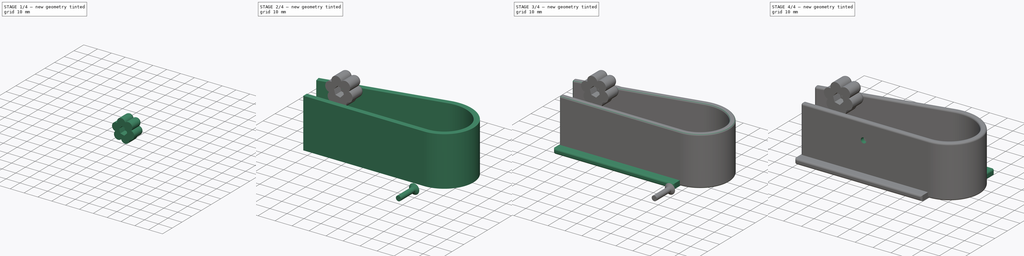
[diagram: build sequence overview — one tinted view per stage of 4, left to right]
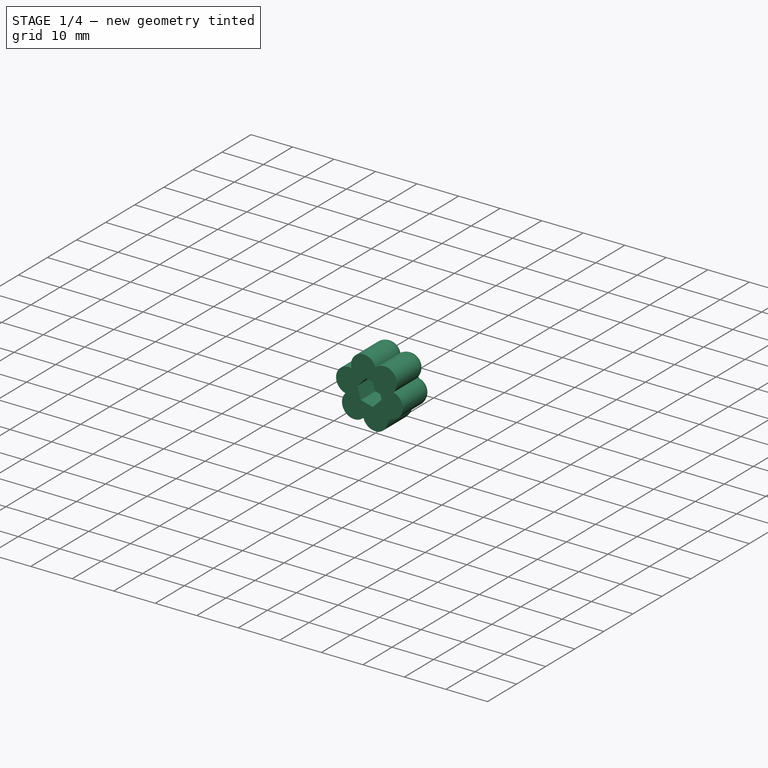
[diagram: stage 1 of 4 — iso view after this stage's code; geometry added in this stage tinted green]
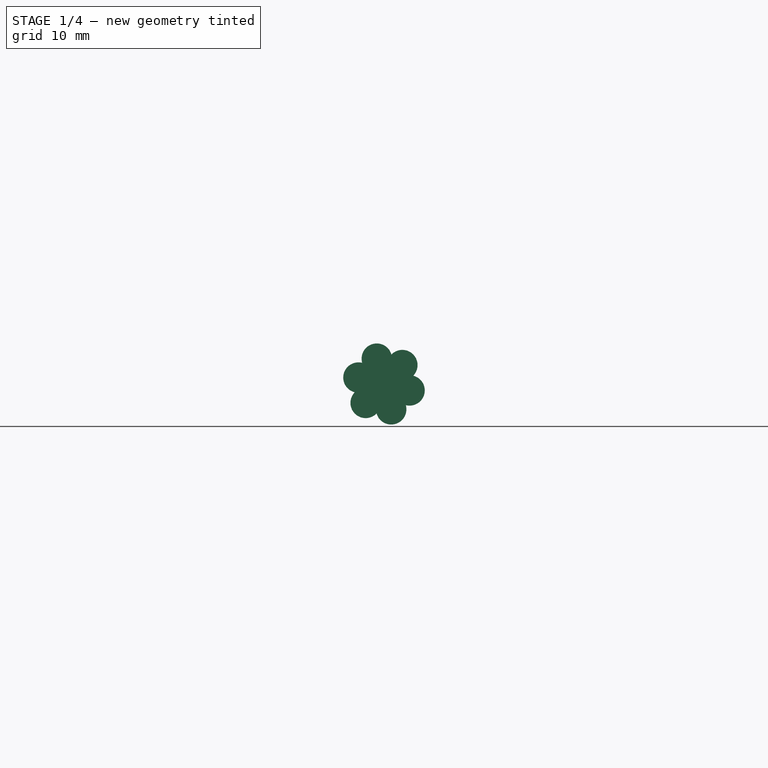
[diagram: stage 1 of 4 — front view after this stage's code; geometry added in this stage tinted green]
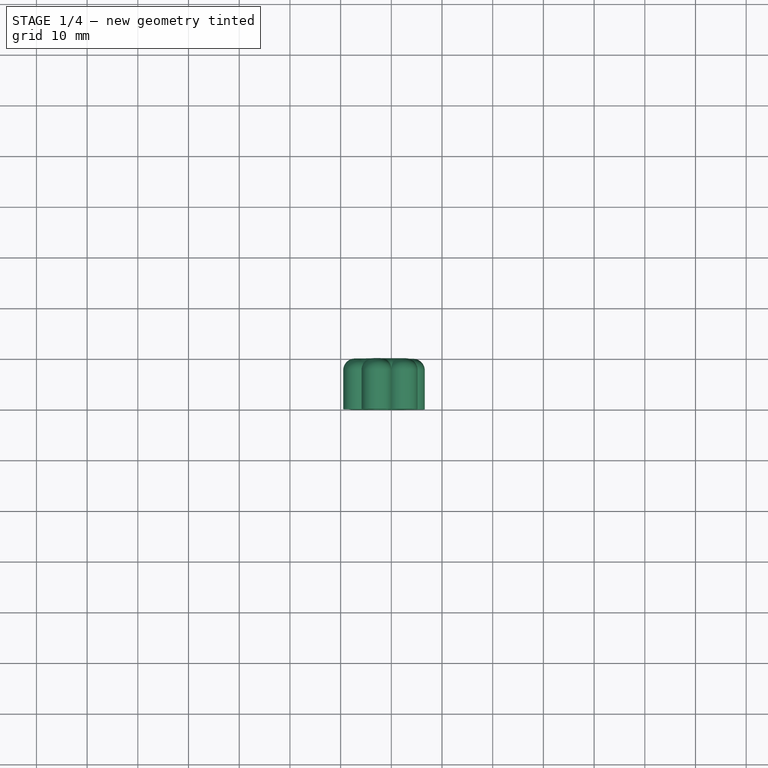
[diagram: stage 1 of 4 — top view after this stage's code; geometry added in this stage tinted green]
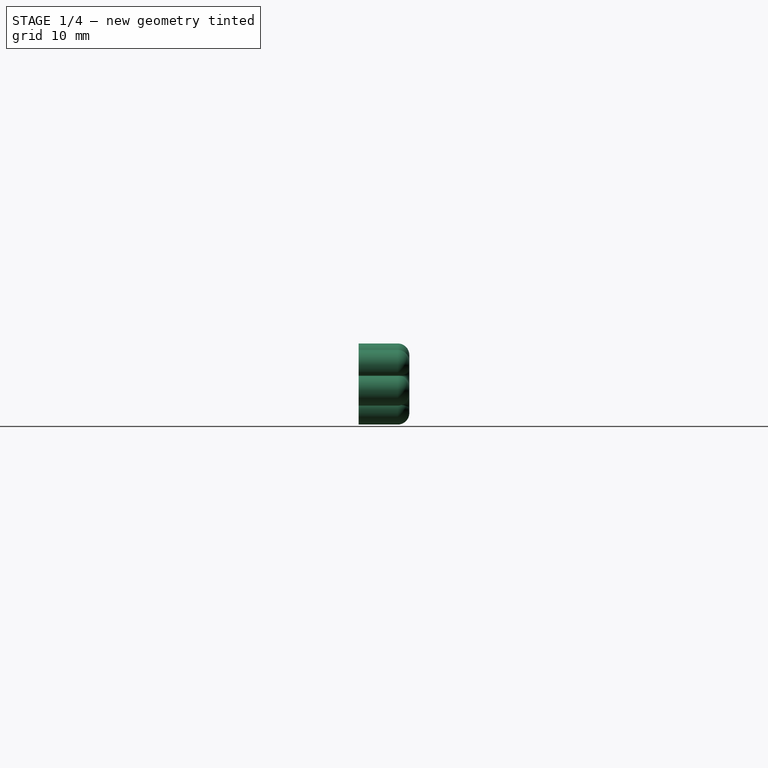
[diagram: stage 1 of 4 — right view after this stage's code; geometry added in this stage tinted green]
FCSTD DOCUMENT  (FreeCAD 0.18R16155 (Git))
Label: esshilfe
License: All rights reserved
LicenseURL: http://en.wikipedia.org/wiki/All_rights_reserved
objects: Sketcher::SketchObject×8, PartDesign::Body×4, PartDesign::Pad×3, PartDesign::Fillet×3, PartDesign::Pocket×2, PartDesign::AdditivePipe×1, PartDesign::Revolution×1, PartDesign::Boolean×1, PartDesign::ShapeBinder×1
note: 31 computed .brp shape members not serialized (recipe doc carries the construction recipe); baked Part::Feature solids carry a one-line shape summary decoded from their .brp

FEATURE [PartDesign::Body] Body005  label="klemm_platte"
  Group = -> [Sketch007,Pad002,Fillet]
  Origin = -> Origin005
  Placement = pos=(-17,-16,4.25) rot=(1,0,0;1.5708rad)
  Tip = -> Fillet
FEATURE [Sketcher::SketchObject] Sketch010
  MapMode = 5
  Placement = pos=(0,0,0) rot=(1,0,0;1.5708rad)
  Support = -> [XZ_Plane007]
  sketch-geometry (7):
    g0: Circle [constr] CenterX=-51.4417 CenterY=34.0103 CenterZ=0 NormalX=0 NormalY=0 NormalZ=1 AngleXU=0 Radius=6
    g1: ArcOfCircle CenterX=-46.403 CenterY=32.7406 CenterZ=0 NormalX=0 NormalY=0 NormalZ=1 AngleXU=0 Radius=3 StartAngle=4.46552 EndAngle=7.60712
    g2: ArcOfCircle CenterX=-47.8227 CenterY=37.739 CenterZ=0 NormalX=0 NormalY=0 NormalZ=1 AngleXU=0 Radius=3 StartAngle=5.51272 EndAngle=8.65432
    g3: ArcOfCircle CenterX=-52.8613 CenterY=39.0088 CenterZ=0 NormalX=0 NormalY=0 NormalZ=1 AngleXU=0 Radius=3 StartAngle=0.276737 EndAngle=3.41833
    g4: ArcOfCircle CenterX=-56.4803 CenterY=35.2801 CenterZ=0 NormalX=0 NormalY=0 NormalZ=1 AngleXU=0 Radius=3 StartAngle=1.32393 EndAngle=4.46553
    g5: ArcOfCircle CenterX=-55.0606 CenterY=30.2816 CenterZ=0 NormalX=0 NormalY=0 NormalZ=1 AngleXU=0 Radius=3 StartAngle=2.37113 EndAngle=5.51272
    g6: ArcOfCircle CenterX=-50.022 CenterY=29.0119 CenterZ=0 NormalX=0 NormalY=0 NormalZ=1 AngleXU=0 Radius=3 StartAngle=3.41833 EndAngle=6.55992
  constraints (21):
    c: PointOnObject(g1,g0)
    c: PointOnObject(g1,g0)
    c: Coincident(g2,g1)
    c: PointOnObject(g2,g0)
    c: Coincident(g3,g2)
    c: PointOnObject(g3,g0)
    c: PointOnObject(g4,g0)
    c: Coincident(g5,g4)
    c: PointOnObject(g5,g0)
    c: Coincident(g6,g5)
    c: Coincident(g6,g1)
    c: Radius(g2) = 3
    c: Equal(g2, g3-g6) x4
    c: Equal(g2,g1)
    c: Coincident(g3,g4)
    c: Distance(g2,g1) = 6
    c: Distance(g3,g2) = 6
    c: Distance(g3,g4) = 6
    c: Distance(g4,g5) = 6
    c: Distance(g5,g1) = 6
    c: Distance(g1,g1) = 6
FEATURE [PartDesign::Pad] Pad004
  Length = 10
  Length2 = 100
  Placement = pos=(0,0,0) rot=(1,0,0;1.5708rad)
  Profile = -> Sketch010
  Type = 0
FEATURE [Sketcher::SketchObject] Sketch011
  ExternalGeometry = -> [Pad004]
  MapMode = 5
  Placement = pos=(0,-10,-2.2e-15) rot=(1,0,0;1.5708rad)
  Support = -> [Pad004]
  sketch-geometry (11):
    g0: LineSegment StartX=-48.5326 StartY=33.2772 StartZ=0 EndX=-49.3523 EndY=36.1631 EndZ=0
    g1: LineSegment StartX=-49.3523 StartY=36.1631 StartZ=0 EndX=-52.2613 EndY=36.8962 EndZ=0
    g2: LineSegment StartX=-52.2613 StartY=36.8962 StartZ=0 EndX=-54.3507 EndY=34.7434 EndZ=0
    g3: LineSegment StartX=-54.3507 StartY=34.7434 StartZ=0 EndX=-53.5311 EndY=31.8576 EndZ=0
    g4: LineSegment StartX=-53.5311 StartY=31.8576 StartZ=0 EndX=-50.622 EndY=31.1245 EndZ=0
    g5: LineSegment StartX=-50.622 StartY=31.1245 StartZ=0 EndX=-48.5326 EndY=33.2772 EndZ=0
    g6: Circle [constr] CenterX=-51.4417 CenterY=34.0103 CenterZ=0 NormalX=0 NormalY=0 NormalZ=1 AngleXU=0 Radius=3
    g7: LineSegment [constr] StartX=-49.9755 StartY=39.8284 StartZ=0 EndX=-49.3523 EndY=36.1631 EndZ=0
    g8: LineSegment [constr] StartX=-48.5326 StartY=33.2772 StartZ=0 EndX=-47.1361 EndY=29.8315 EndZ=0
    g9: LineSegment [constr] StartX=-55.7472 StartY=38.1891 StartZ=0 EndX=-54.3507 EndY=34.7434 EndZ=0
    g10: LineSegment [constr] StartX=-53.5311 StartY=31.8576 StartZ=0 EndX=-52.9079 EndY=28.1922 EndZ=0
  constraints (25):
    c: Coincident(g0,g1)
    c: Coincident(g1,g2)
    c: Coincident(g2,g3)
    c: Coincident(g3,g4)
    c: Coincident(g4,g5)
    c: Coincident(g5,g0)
    c: Equal(g0, g1-g5) x5
    c: PointOnObject(g0,g6)
    c: PointOnObject(g1,g6)
    c: PointOnObject(g2,g6)
    c: PointOnObject(g3,g6)
    c: PointOnObject(g4,g6)
    c: PointOnObject(g5,g6)
    c: Distance(g1,g4) = 6
    c: Coincident(g7,g-3)
    c: Coincident(g7,g0)
    c: Coincident(g8,g0)
    c: Coincident(g8,g-4)
    c: Equal(g8,g7)
    c: Coincident(g9,g-3)
    c: Coincident(g9,g2)
    c: Coincident(g10,g3)
    c: Coincident(g10,g-4)
    c: Equal(g8,g10)
    c: Equal(g9,g7)
FEATURE [PartDesign::Pocket] Pocket
  BaseFeature = -> Pad004
  Length = 5
  Length2 = 100
  Placement = pos=(0,0,0) rot=(1,0,0;1.5708rad)
  Profile = -> Sketch011
  Type = 0
FEATURE [PartDesign::Fillet] Fillet002
  Base = -> Pocket [Face4]
  BaseFeature = -> Pocket
  Placement = pos=(0,0,0) rot=(1,0,0;1.5708rad)
  Radius = 2.3
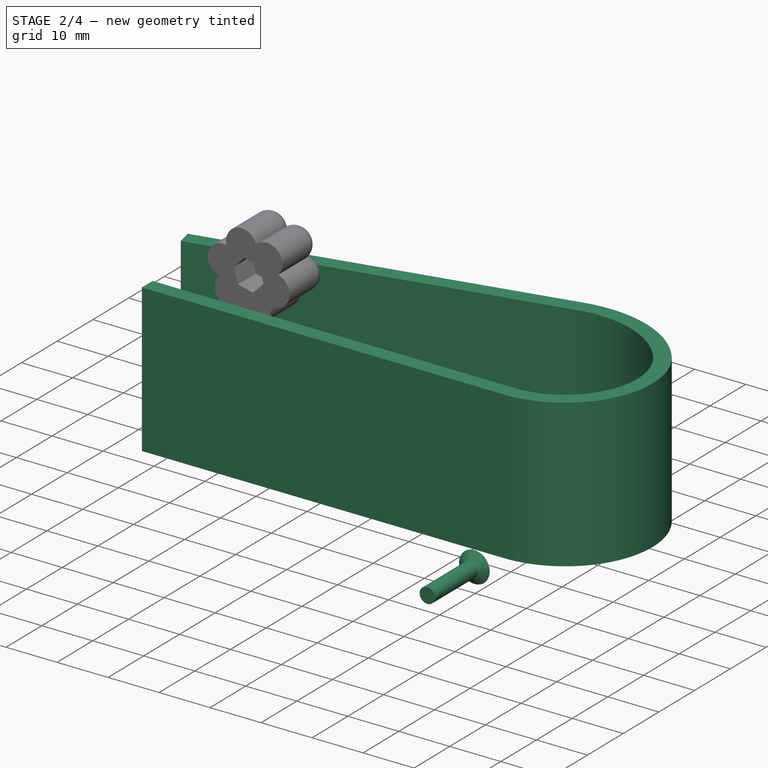
[diagram: stage 2 of 4 — iso view after this stage's code; geometry added in this stage tinted green]
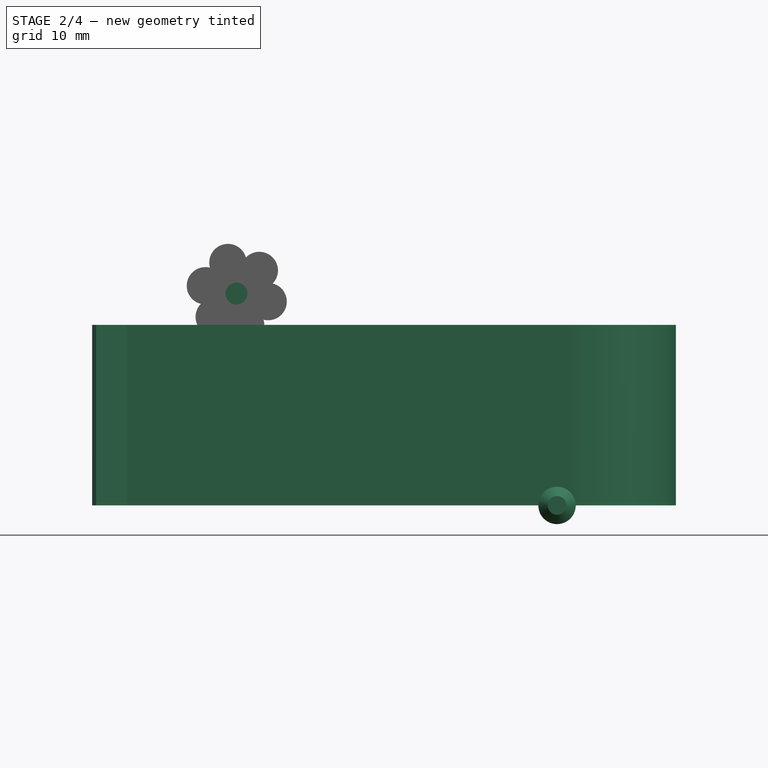
[diagram: stage 2 of 4 — front view after this stage's code; geometry added in this stage tinted green]
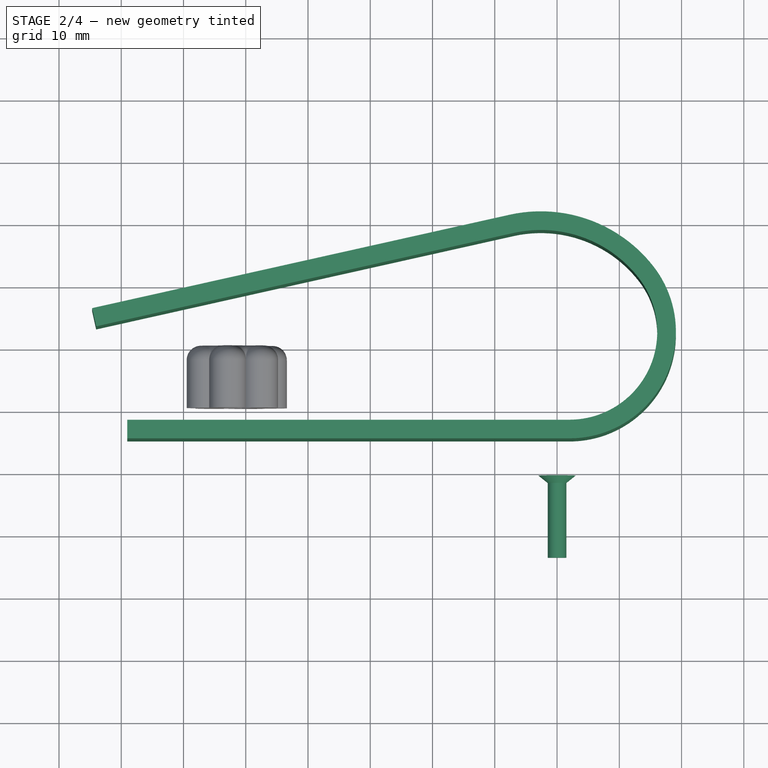
[diagram: stage 2 of 4 — top view after this stage's code; geometry added in this stage tinted green]
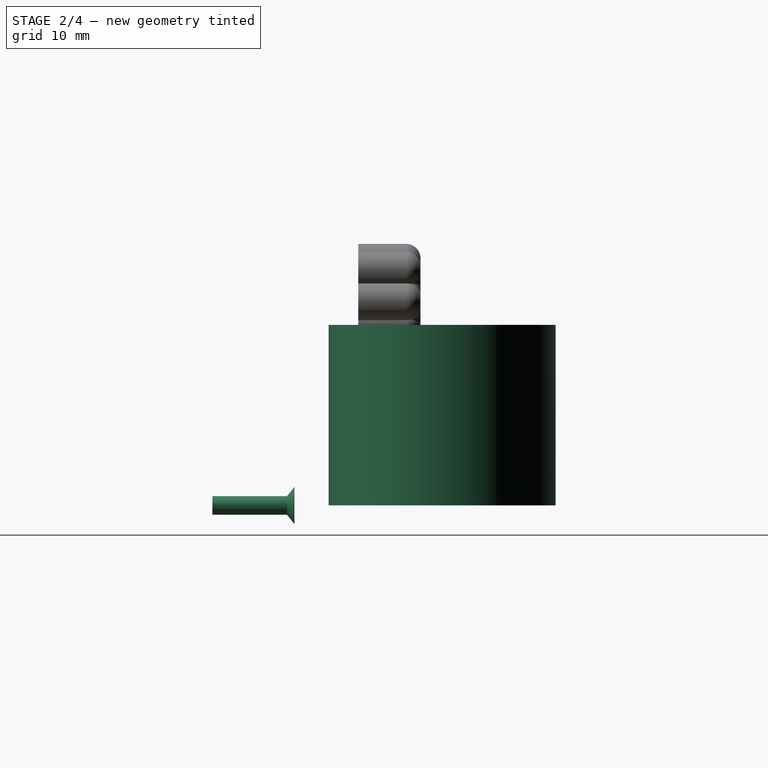
[diagram: stage 2 of 4 — right view after this stage's code; geometry added in this stage tinted green]
FEATURE [Sketcher::SketchObject] Sketch
  MapMode = 5
  Support = -> [XY_Plane]
  sketch-geometry (4):
    g0: LineSegment StartX=-69.0238 StartY=-11.7731 StartZ=0 EndX=1.97621 EndY=-11.7731 EndZ=0
    g1: ArcOfCircle CenterX=1.97621 CenterY=2.34391 CenterZ=0 NormalX=0 NormalY=0 NormalZ=1 AngleXU=0 Radius=14.117 StartAngle=4.71239 EndAngle=6.94443
    g2: ArcOfCircle CenterX=-2.61929 CenterY=-1.23182 CenterZ=0 NormalX=0 NormalY=0 NormalZ=1 AngleXU=0 Radius=19.9397 StartAngle=0.661241 EndAngle=1.79088
    g3: LineSegment StartX=-6.97239 StartY=18.2269 StartZ=0 EndX=-74.0238 EndY=3.22694 EndZ=0
  constraints (8):
    c: Horizontal(g0)
    c: Tangent(g3,g2) = -1.5708
    c: Tangent(g2,g1) = -1.5708
    c: Tangent(g1,g0) = -1.5708
    c: DistanceX(g0,g0) = 71
    c: DistanceY(g0,g2) = 30
    c: DistanceX(g3,g0) = 5
    c: DistanceY(g0,g3) = 15
FEATURE [Sketcher::SketchObject] Sketch001
  ExternalGeometry = -> [Sketch]
  MapMode = 5
  Placement = pos=(0,0,0) rot=(0.57735,0.57735,0.57735;2.0944rad)
  Support = -> [YZ_Plane]
  sketch-geometry (4):
    g0: LineSegment StartX=-14.7731 StartY=29 StartZ=0 EndX=-11.7731 EndY=29 EndZ=0
    g1: LineSegment StartX=-11.7731 StartY=29 StartZ=0 EndX=-11.7731 EndY=7.1e-15 EndZ=0
    g2: LineSegment StartX=-11.7731 StartY=7.1e-15 StartZ=0 EndX=-14.7731 EndY=7.1e-15 EndZ=0
    g3: LineSegment StartX=-14.7731 StartY=7.1e-15 StartZ=0 EndX=-14.7731 EndY=29 EndZ=0
  constraints (11):
    c: Coincident(g0,g1)
    c: Coincident(g1,g2)
    c: Coincident(g2,g3)
    c: Coincident(g3,g0)
    c: Horizontal(g0)
    c: Horizontal(g2)
    c: Vertical(g1)
    c: Vertical(g3)
    c: Coincident(g-3,g1)
    c: DistanceX(g0,g0) = 3
    c: DistanceY(g3,g3) = 29
FEATURE [PartDesign::AdditivePipe] AdditivePipe
  AuxilleryCurvelinear = true
  AuxillerySpineTangent = false
  Binormal = (0,0,0)
  Mode = 0
  Placement = pos=(0,0,0) rot=(0.57735,0.57735,0.57735;2.0944rad)
  Profile = -> Sketch001
  Spine = -> Sketch [Edge1,Edge2,Edge3,Edge4]
  SpineTangent = false
  Transformation = 0
  Transition = 0
FEATURE [Sketcher::SketchObject] Sketch005
  MapMode = 5
  Placement = pos=(0,0,0) rot=(0.57735,0.57735,0.57735;2.0944rad)
  Support = -> [YZ_Plane003]
  sketch-geometry (5):
    g0: LineSegment StartX=-21.4416 StartY=1.5 StartZ=0 EndX=-33.4416 EndY=1.5 EndZ=0
    g1: LineSegment StartX=-33.4416 StartY=1.5 StartZ=0 EndX=-33.4416 EndY=0 EndZ=0
    g2: LineSegment StartX=-33.4416 StartY=0 StartZ=0 EndX=-20.2416 EndY=0 EndZ=0
    g3: LineSegment StartX=-21.4416 StartY=1.5 StartZ=0 EndX=-20.2416 EndY=3 EndZ=0
    g4: LineSegment StartX=-20.2416 StartY=3 StartZ=0 EndX=-20.2416 EndY=0 EndZ=0
  constraints (14):
    c: Horizontal(g0)
    c: Coincident(g1,g0)
    c: Vertical(g1)
    c: Coincident(g2,g1)
    c: Horizontal(g2)
    c: Coincident(g3,g0)
    c: Coincident(g4,g3)
    c: Vertical(g4)
    c: Coincident(g4,g2)
    c: DistanceY(g1,g1) = 1.5
    c: DistanceY(g4,g4) = 3
    c: DistanceX(g0,g3) = 1.2
    c: PointOnObject(g1,g-1)
    c: DistanceX(g0,g0) = 12
FEATURE [PartDesign::Revolution] Revolution001
  Angle = 360
  Axis = (3e-16,1,-2e-16)
  Base = (0,0,0)
  Placement = pos=(0,0,0) rot=(0.57735,0.57735,0.57735;2.0944rad)
  Profile = -> Sketch005
  ReferenceAxis = -> Sketch005 [H_Axis]
FEATURE [PartDesign::ShapeBinder] CopyFillet002
  Placement = pos=(0,5,1.1e-15) rot=(0,0,1;0rad)
  TraceSupport = false
FEATURE [PartDesign::Body] Body  label="hand_schlaufe"
  Group = -> [Sketch,Sketch001,AdditivePipe,Sketch002,Pad,Fillet001,Boolean,CopyFillet002]
  Origin = -> Origin
  Tip = -> Boolean
FEATURE [Sketcher::SketchObject] Sketch013
  MapMode = 5
  Placement = pos=(-4e-16,-5,-1.7e-15) rot=(1,0,0;1.5708rad)
  Support = -> [Fillet002]
  sketch-geometry (1):
    g0: Circle CenterX=-51.4908 CenterY=34.0387 CenterZ=0 NormalX=0 NormalY=0 NormalZ=1 AngleXU=0 Radius=1.75808
FEATURE [PartDesign::Pocket] Pocket001
  BaseFeature = -> Fillet002
  Length = 3
  Length2 = 100
  Placement = pos=(0,0,0) rot=(1,0,0;1.5708rad)
  Profile = -> Sketch013
  Type = 0
FEATURE [PartDesign::Body] Body007  label="fluegelmutter"
  Group = -> [Sketch010,Pad004,Sketch011,Pocket,Fillet002,Sketch013,Pocket001]
  Origin = -> Origin007
  Placement = pos=(-86,-29,-14) rot=(0,0,1;3.14159rad)
  Tip = -> Pocket001
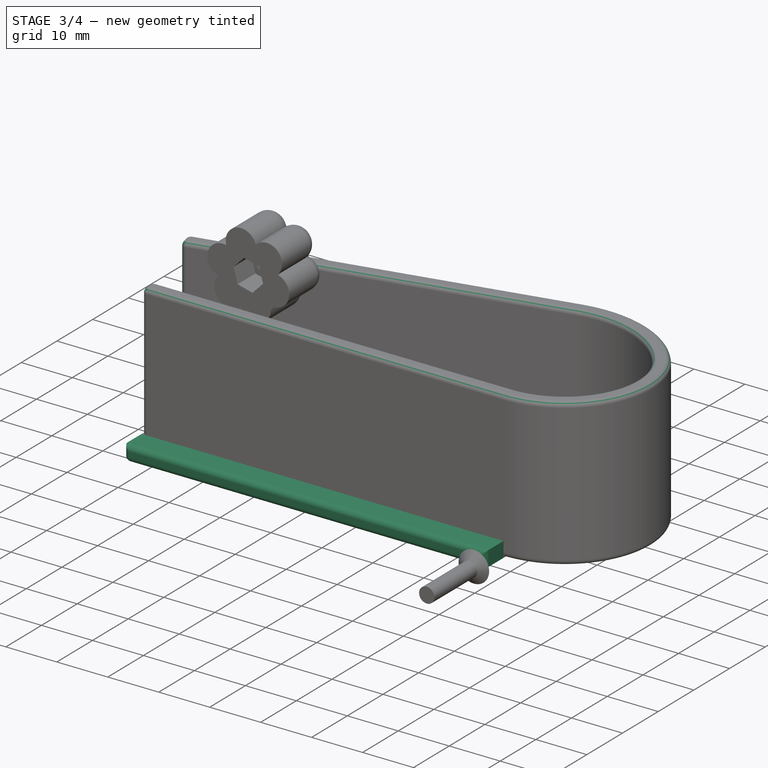
[diagram: stage 3 of 4 — iso view after this stage's code; geometry added in this stage tinted green]
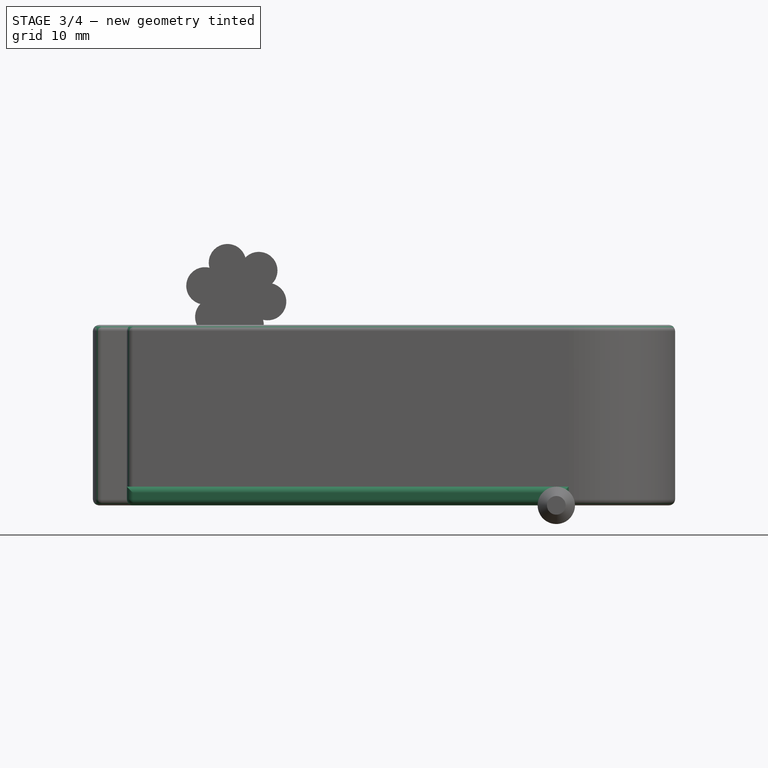
[diagram: stage 3 of 4 — front view after this stage's code; geometry added in this stage tinted green]
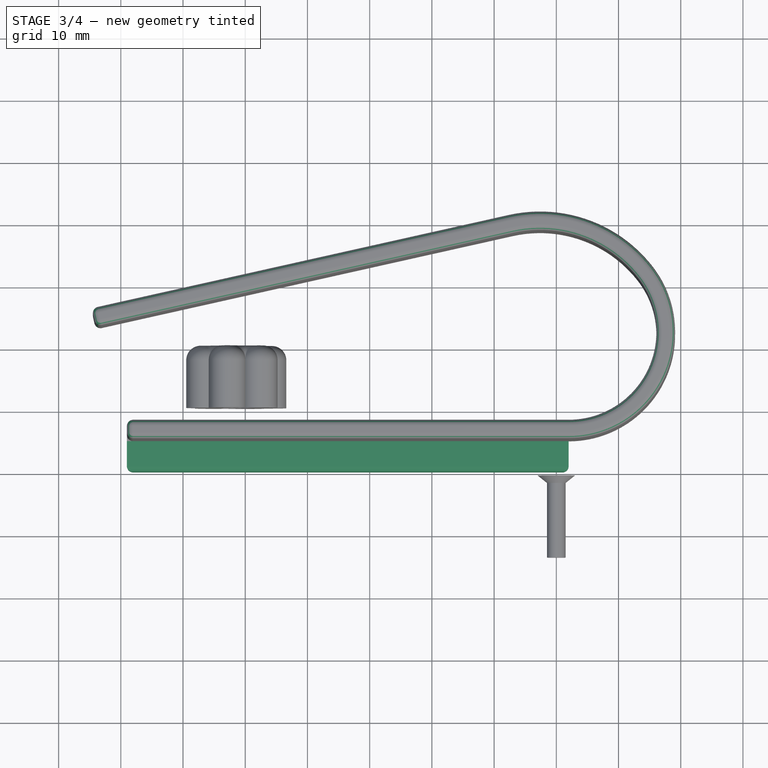
[diagram: stage 3 of 4 — top view after this stage's code; geometry added in this stage tinted green]
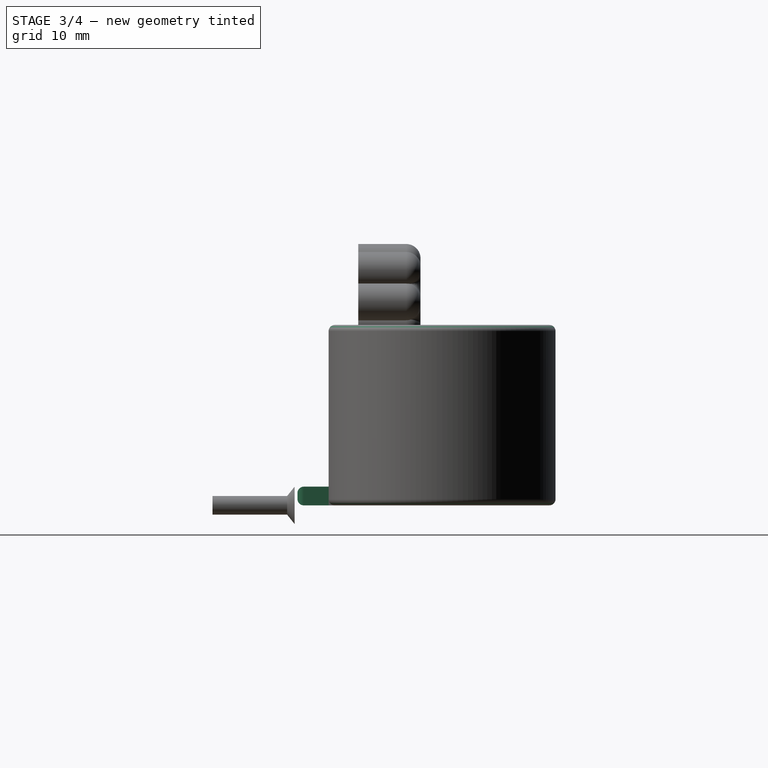
[diagram: stage 3 of 4 — right view after this stage's code; geometry added in this stage tinted green]
FEATURE [Sketcher::SketchObject] Sketch002
  ExternalGeometry = -> [AdditivePipe]
  MapMode = 5
  Placement = pos=(0,-14.7731,3.3e-15) rot=(0.57735,0.57735,-0.57735;2.0944rad)
  Support = -> [AdditivePipe]
  sketch-geometry (4):
    g0: LineSegment StartX=-9.8e-15 StartY=1.97621 StartZ=0 EndX=-3 EndY=1.97621 EndZ=0
    g1: LineSegment StartX=-3 StartY=1.97621 StartZ=0 EndX=-3 EndY=-69.0238 EndZ=0
    g2: LineSegment StartX=-3 StartY=-69.0238 StartZ=0 EndX=-9.8e-15 EndY=-69.0238 EndZ=0
    g3: LineSegment StartX=-9.8e-15 StartY=-69.0238 StartZ=0 EndX=-9.8e-15 EndY=1.97621 EndZ=0
  constraints (11):
    c: Coincident(g0,g1)
    c: Coincident(g1,g2)
    c: Coincident(g2,g3)
    c: Coincident(g3,g0)
    c: Horizontal(g0)
    c: Horizontal(g2)
    c: Vertical(g1)
    c: Vertical(g3)
    c: Coincident(g0,g-3)
    c: PointOnObject(g1,g-5)
    c: DistanceX(g0,g0) = 3
FEATURE [PartDesign::Pad] Pad
  BaseFeature = -> AdditivePipe
  Length = 5
  Length2 = 100
  Placement = pos=(0,0,0) rot=(0.57735,0.57735,0.57735;2.0944rad)
  Profile = -> Sketch002
  Type = 0
FEATURE [PartDesign::Fillet] Fillet001
  Base = -> Pad [Face20,Face15,Face8,Face22,Face1,Face23,Face12]
  BaseFeature = -> Pad
  Placement = pos=(0,0,0) rot=(0.57735,0.57735,0.57735;2.0944rad)
  Radius = 1
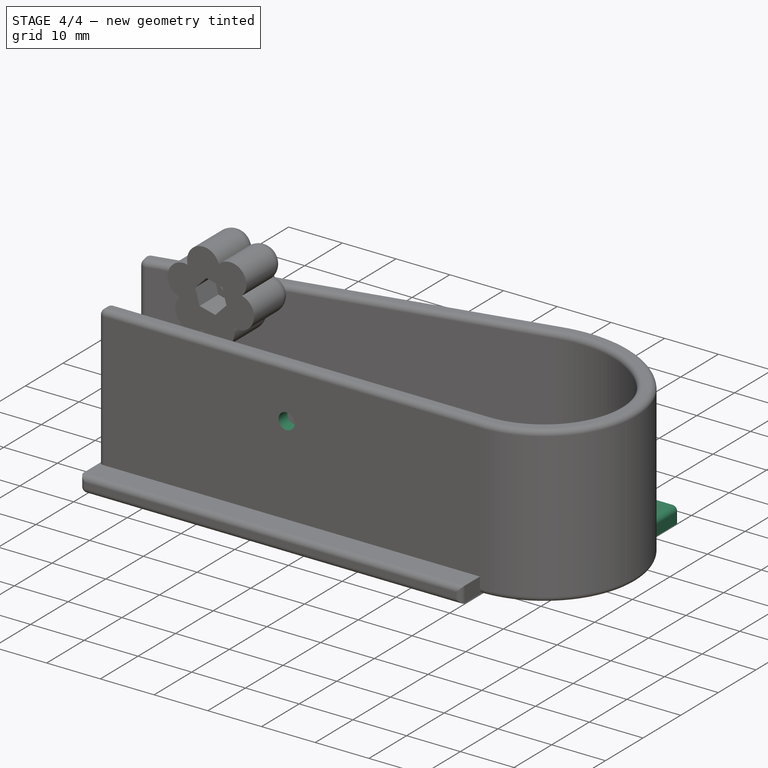
[diagram: stage 4 of 4 — iso view after this stage's code; geometry added in this stage tinted green]
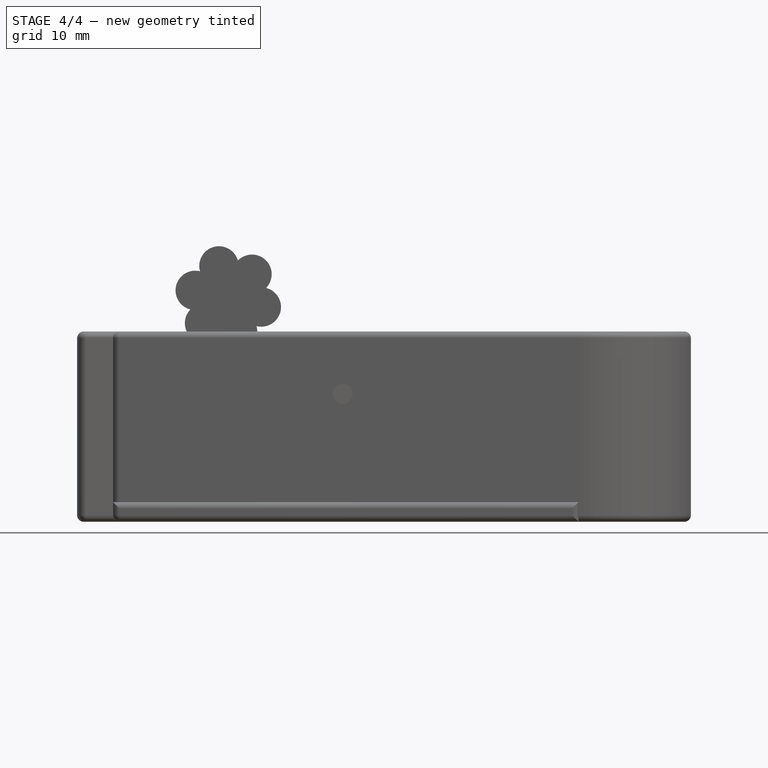
[diagram: stage 4 of 4 — front view after this stage's code; geometry added in this stage tinted green]
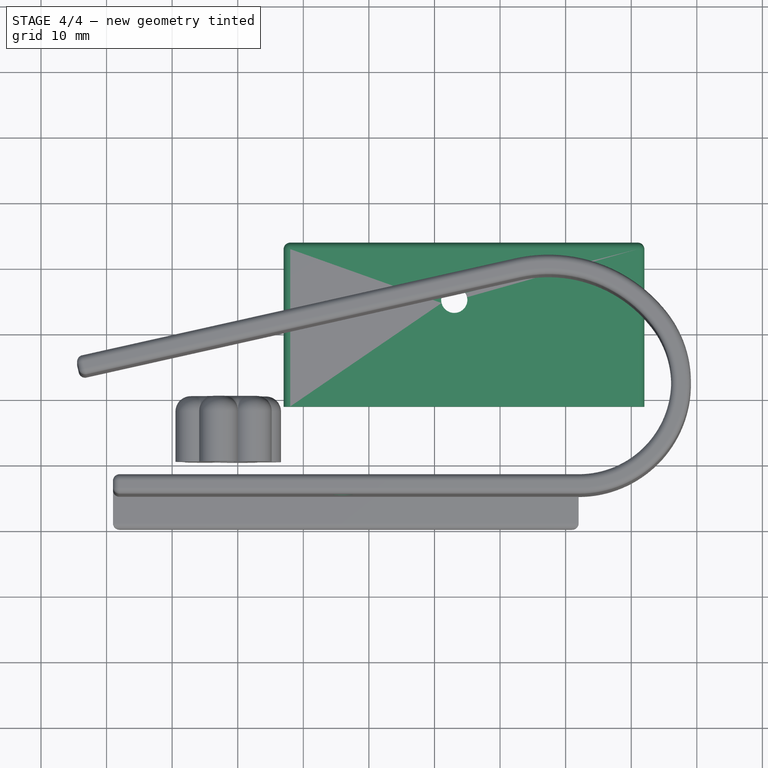
[diagram: stage 4 of 4 — top view after this stage's code; geometry added in this stage tinted green]
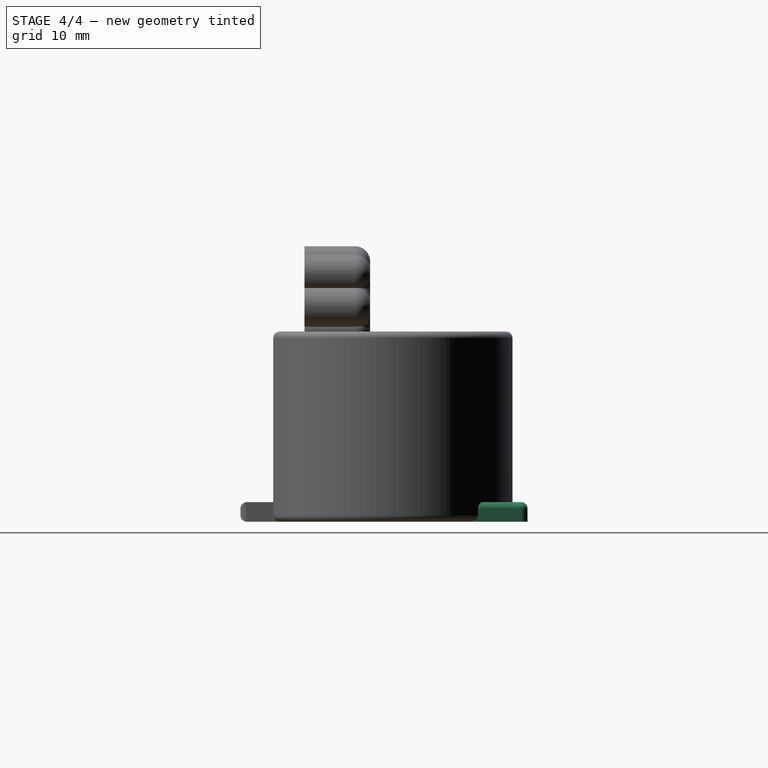
[diagram: stage 4 of 4 — right view after this stage's code; geometry added in this stage tinted green]
FEATURE [PartDesign::Body] Body003  label="screw_with_clear"
  Group = -> [Sketch005,Revolution001]
  Origin = -> Origin003
  Placement = pos=(-34,9,19.5) rot=(0,0,1;0rad)
  Tip = -> Revolution001
FEATURE [Sketcher::SketchObject] Sketch007
  MapMode = 5
  Support = -> [XY_Plane005]
  sketch-geometry (5):
    g0: LineSegment StartX=-43 StartY=-1 StartZ=0 EndX=12 EndY=-1 EndZ=0
    g1: LineSegment StartX=12 StartY=-1 StartZ=0 EndX=12 EndY=24 EndZ=0
    g2: LineSegment StartX=12 StartY=24 StartZ=0 EndX=-43 EndY=24 EndZ=0
    g3: LineSegment StartX=-43 StartY=24 StartZ=0 EndX=-43 EndY=-1 EndZ=0
    g4: Circle CenterX=-16.9845 CenterY=15.27 CenterZ=0 NormalX=0 NormalY=0 NormalZ=1 AngleXU=0 Radius=2
  constraints (13):
    c: Coincident(g0,g1)
    c: Coincident(g1,g2)
    c: Coincident(g2,g3)
    c: Coincident(g3,g0)
    c: Horizontal(g0)
    c: Horizontal(g2)
    c: Vertical(g1)
    c: Vertical(g3)
    c: DistanceY(g1,g1) = 25
    c: DistanceX(g2,g2) = 55
    c: Radius(g4) = 2
    c: DistanceY(g0,g-1) = 1
    c: DistanceX(g-1,g0) = 12
FEATURE [PartDesign::Pad] Pad002
  Length = 3
  Length2 = 100
  Profile = -> Sketch007
  Type = 0
FEATURE [PartDesign::Fillet] Fillet
  Base = -> Pad002 [Edge5,Edge10,Edge8,Edge12,Edge7]
  BaseFeature = -> Pad002
  Radius = 1
FEATURE [PartDesign::Boolean] Boolean
  BaseFeature = -> Fillet001
  Group = -> [Body003]
  Type = 1
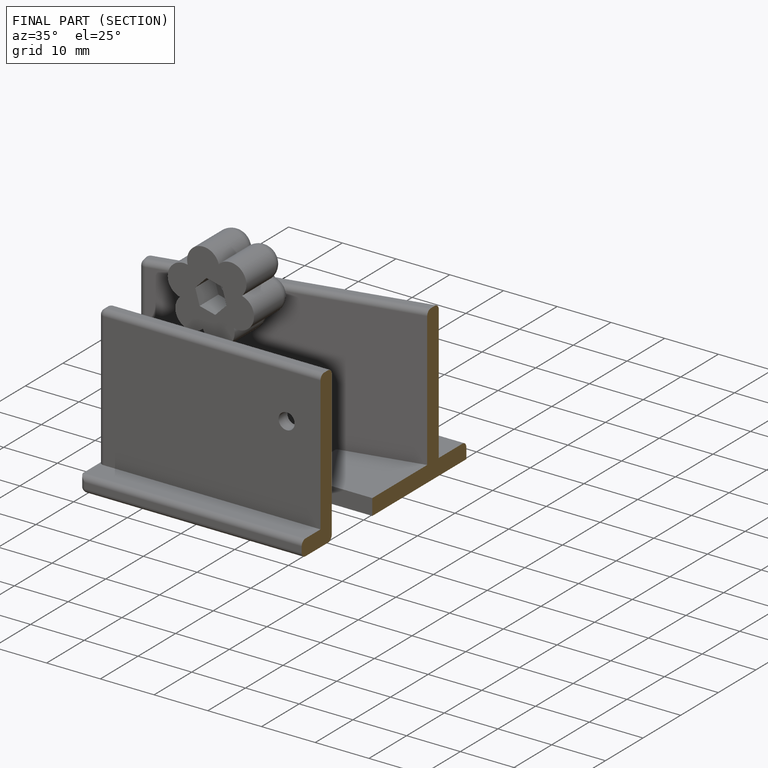
[diagram: finished part — half-section view (interior)]
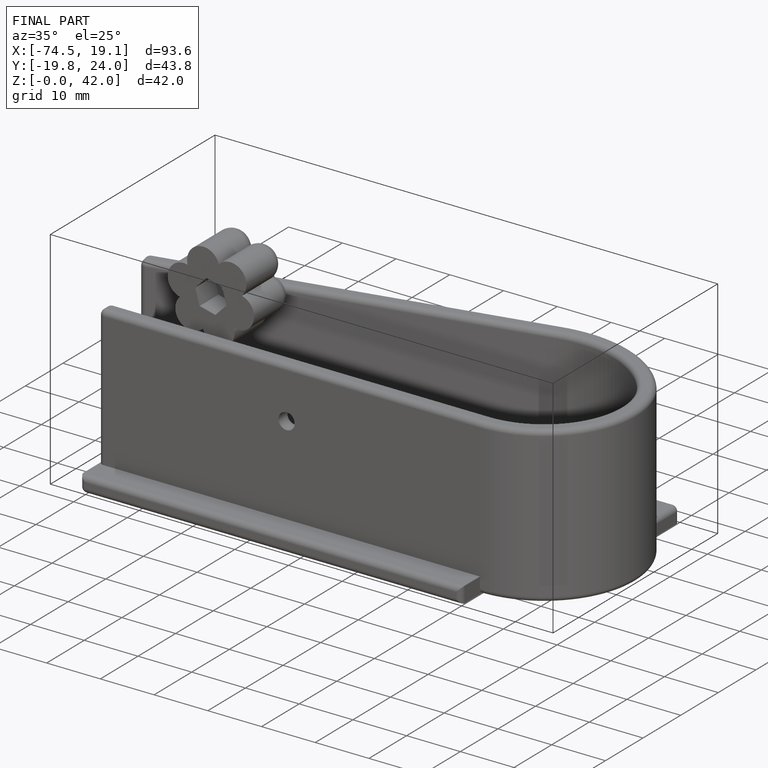
[diagram: finished part — iso view with bounding-box wireframe]
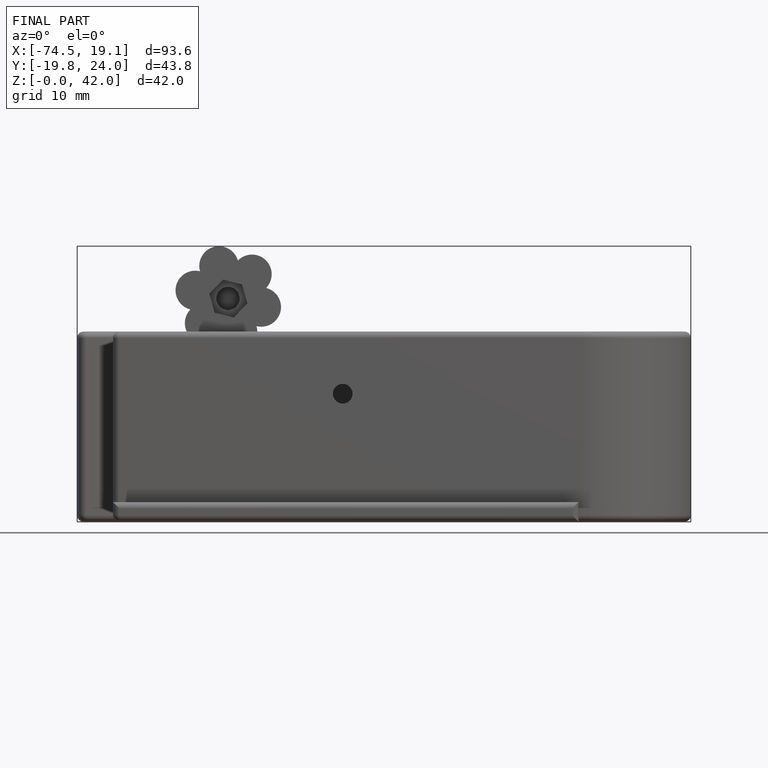
[diagram: finished part — front view with bounding-box wireframe]
